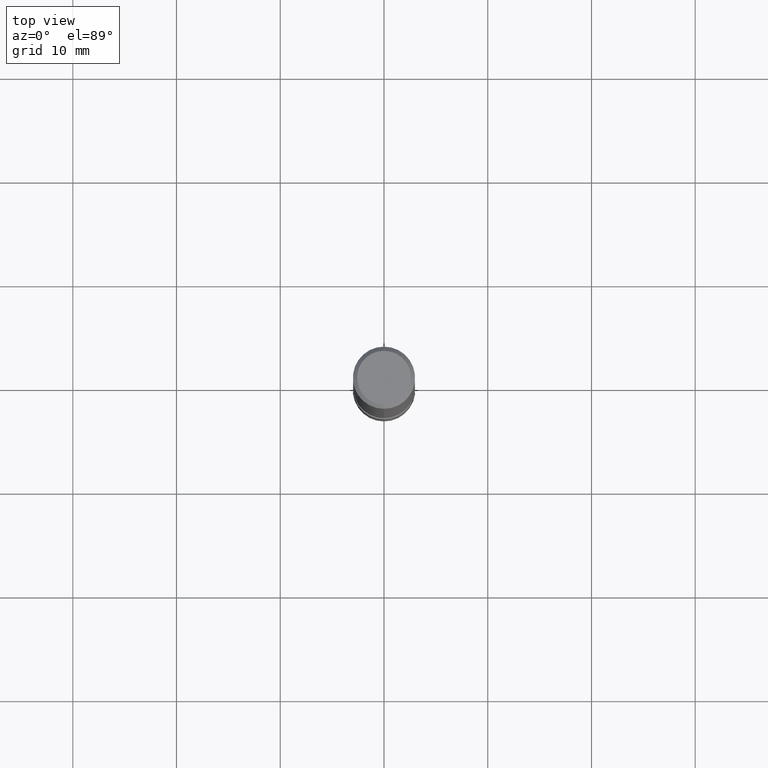
[diagram: clean part render]
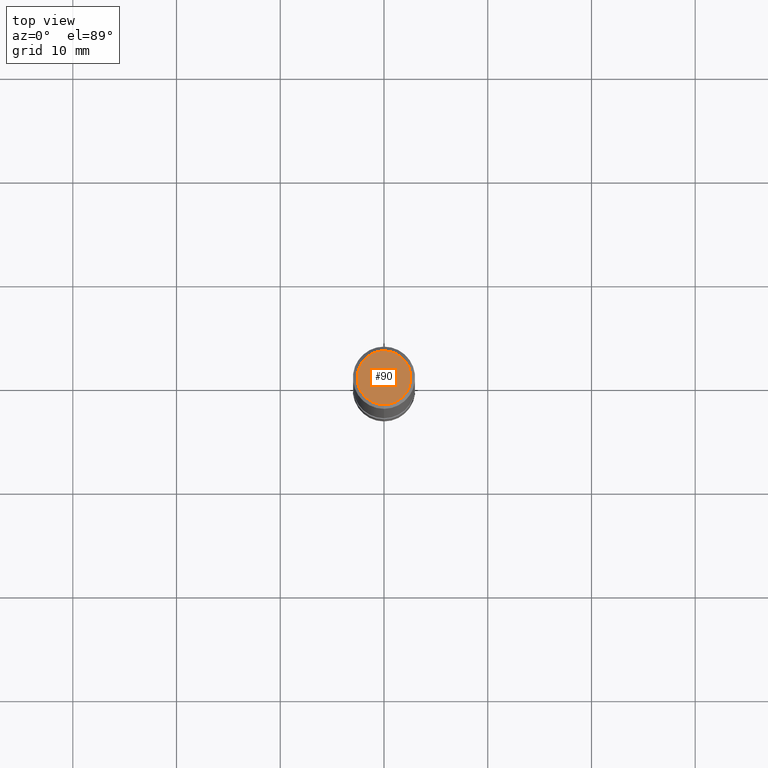
[diagram: same view with one face highlighted and labeled with its STEP entity id]
A machine part, top view. The second image highlights one B-rep face of the part: STEP entity #90.
In plain terms, the highlighted planar face has unit normal (-0, 0, 1).
Its self-contained STEP definition (entity closure, byte-faithful):
#90=ADVANCED_FACE('',(#213),#214,.T.);
#122=VERTEX_POINT('',#249);
#130=VERTEX_POINT('',#258);
#162=EDGE_CURVE('',#130,#122,#295,.T.);
#164=EDGE_CURVE('',#122,#130,#297,.T.);
#213=FACE_OUTER_BOUND('',#341,.T.);
#214=PLANE('',#342);
#249=CARTESIAN_POINT('',(3.18397651993818E-016,-2.6,0.0));
#258=CARTESIAN_POINT('',(0.0,2.6,0.0));
#295=CIRCLE('',#447,2.6);
#297=CIRCLE('',#450,2.6);
#341=EDGE_LOOP('',(#496,#497));
#342=AXIS2_PLACEMENT_3D('',#498,#499,#500);
#447=AXIS2_PLACEMENT_3D('',#595,#596,#597);
#450=AXIS2_PLACEMENT_3D('',#598,#599,#600);
#496=ORIENTED_EDGE('',*,*,#162,.F.);
#497=ORIENTED_EDGE('',*,*,#164,.F.);
#498=CARTESIAN_POINT('',(0.0,1.3,0.0));
#499=DIRECTION('',(-0.0,0.0,1.0));
#500=DIRECTION('',(0.0,-1.0,0.0));
#595=CARTESIAN_POINT('',(0.0,0.0,0.0));
#596=DIRECTION('',(0.0,0.0,-1.0));
#597=DIRECTION('',(0.0,1.0,0.0));
#598=CARTESIAN_POINT('',(0.0,0.0,0.0));
#599=DIRECTION('',(0.0,0.0,-1.0));
#600=DIRECTION('',(0.0,1.0,0.0));